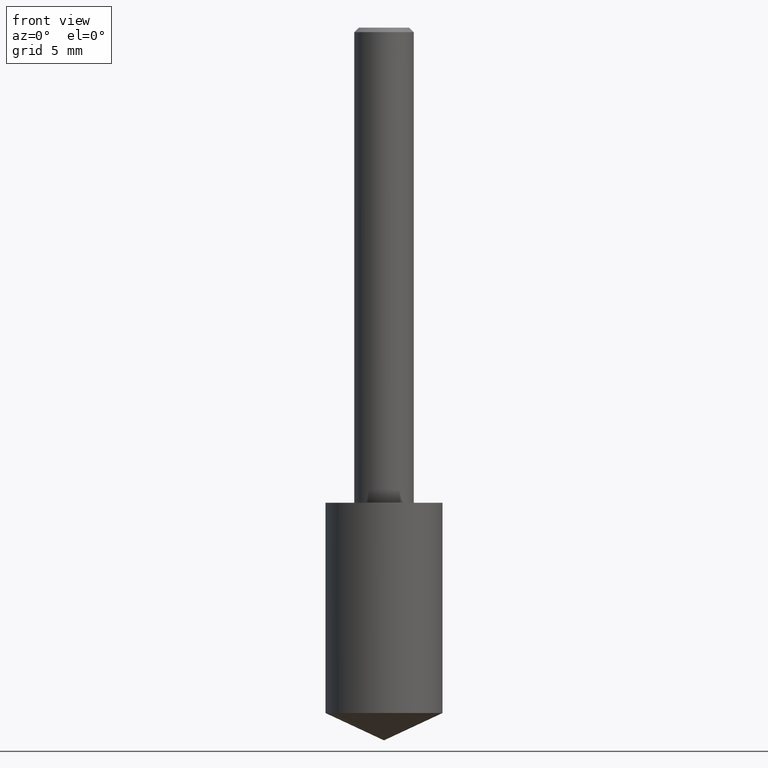
[diagram: clean part render]
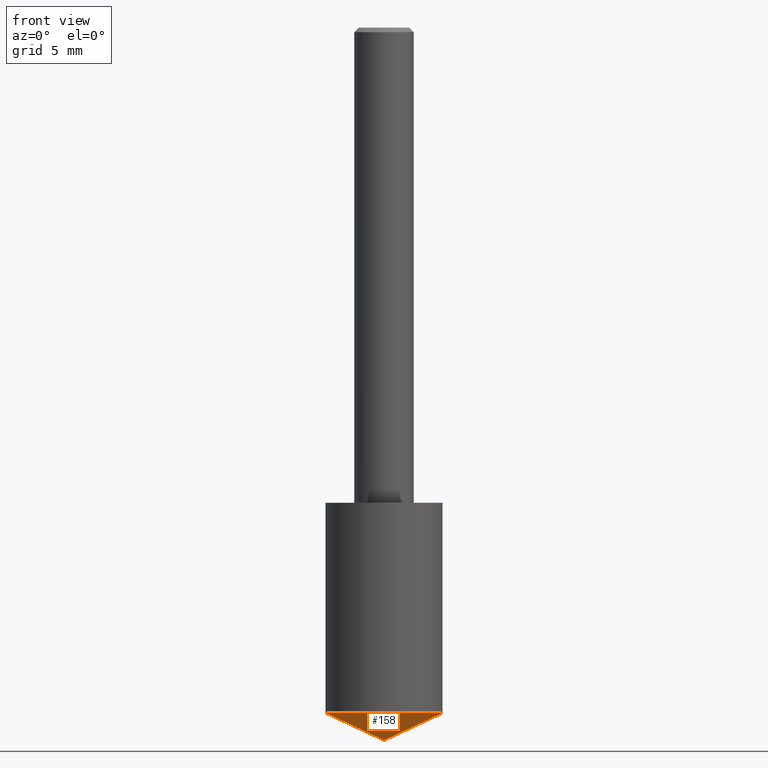
[diagram: same view with one face highlighted and labeled with its STEP entity id]
A machine part, front view. The second image highlights one B-rep face of the part: STEP entity #158.
In plain terms, the highlighted conical surface has half-angle 65 deg.
Its self-contained STEP definition (entity closure, byte-faithful):
#13 = DIRECTION ( 'NONE',  ( 1.000000000000000000, -6.982962677686263555E-15, 0.000000000000000000 ) ) ;
#20 = CARTESIAN_POINT ( 'NONE',  ( 3.668203209277704895E-29, -5.237222008264718177E-15, -1.500000000000000222 ) ) ;
#22 = CIRCLE ( 'NONE', #136, 0.1230500000000000066 ) ;
#25 = EDGE_LOOP ( 'NONE', ( #52, #54, #319 ) ) ;
#43 = DIRECTION ( 'NONE',  ( -2.445468806185136597E-29, 3.491481338843145583E-15, 1.000000000000000000 ) ) ;
#46 = DIRECTION ( 'NONE',  ( 1.000000000000000000, -6.982962677686266711E-15, 0.000000000000000000 ) ) ;
#52 = ORIENTED_EDGE ( 'NONE', *, *, #216, .F. ) ;
#54 = ORIENTED_EDGE ( 'NONE', *, *, #282, .T. ) ;
#57 = CONICAL_SURFACE ( 'NONE', #338, 84.42940631927417883, 1.134464013796315118 ) ;
#98 = CARTESIAN_POINT ( 'NONE',  ( 3.668203209277704895E-29, -5.237222008264718177E-15, -1.500000000000000222 ) ) ;
#101 = DIRECTION ( 'NONE',  ( -0.9063077870366502697, 7.915267918739016209E-15, 0.4226182617406986641 ) ) ;
#124 = CARTESIAN_POINT ( 'NONE',  ( -9.261009624683002666E-28, 1.322226732217803884E-13, 37.87007874015748143 ) ) ;
#130 = VERTEX_POINT ( 'NONE', #226 ) ;
#136 = AXIS2_PLACEMENT_3D ( 'NONE', #232, #179, #13 ) ;
#150 = EDGE_CURVE ( 'NONE', #162, #130, #22, .T. ) ;
#156 = LINE ( 'NONE', #20, #309 ) ;
#158 = ADVANCED_FACE ( 'NONE', ( #277 ), #57, .T. ) ;
#162 = VERTEX_POINT ( 'NONE', #198 ) ;
#179 = DIRECTION ( 'NONE',  ( -2.445468806185136597E-29, 3.491481338843145583E-15, 1.000000000000000000 ) ) ;
#182 = VECTOR ( 'NONE', #307, 39.37007874015748143 ) ;
#193 = VERTEX_POINT ( 'NONE', #98 ) ;
#198 = CARTESIAN_POINT ( 'NONE',  ( -0.1230500000000000344, -4.162560914834822950E-15, -1.442620842664027681 ) ) ;
#203 = LINE ( 'NONE', #233, #182 ) ;
#216 = EDGE_CURVE ( 'NONE', #193, #162, #156, .T. ) ;
#226 = CARTESIAN_POINT ( 'NONE',  ( 0.1230500000000000344, -5.896137308676920999E-15, -1.442620842664027681 ) ) ;
#232 = CARTESIAN_POINT ( 'NONE',  ( 3.527884269887395579E-29, -5.036883751187626177E-15, -1.442620842664027681 ) ) ;
#233 = CARTESIAN_POINT ( 'NONE',  ( 3.668203209277704895E-29, -5.237222008264718177E-15, -1.500000000000000222 ) ) ;
#277 = FACE_OUTER_BOUND ( 'NONE', #25, .T. ) ;
#282 = EDGE_CURVE ( 'NONE', #193, #130, #203, .T. ) ;
#307 = DIRECTION ( 'NONE',  ( 0.9063077870366502697, -4.853149677051385890E-15, 0.4226182617406986641 ) ) ;
#309 = VECTOR ( 'NONE', #101, 39.37007874015748143 ) ;
#319 = ORIENTED_EDGE ( 'NONE', *, *, #150, .F. ) ;
#338 = AXIS2_PLACEMENT_3D ( 'NONE', #124, #43, #46 ) ;